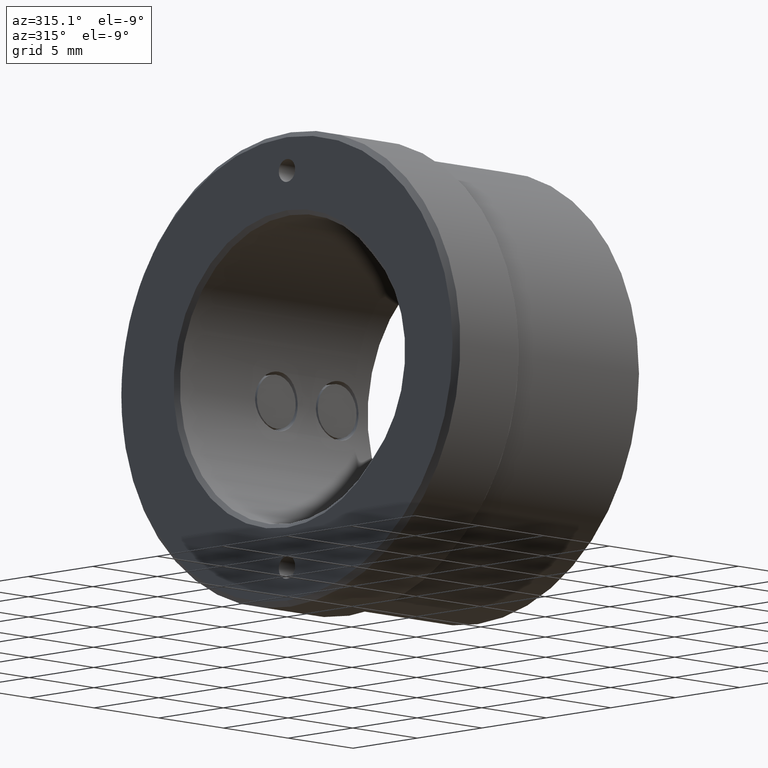
[diagram: clean part render]
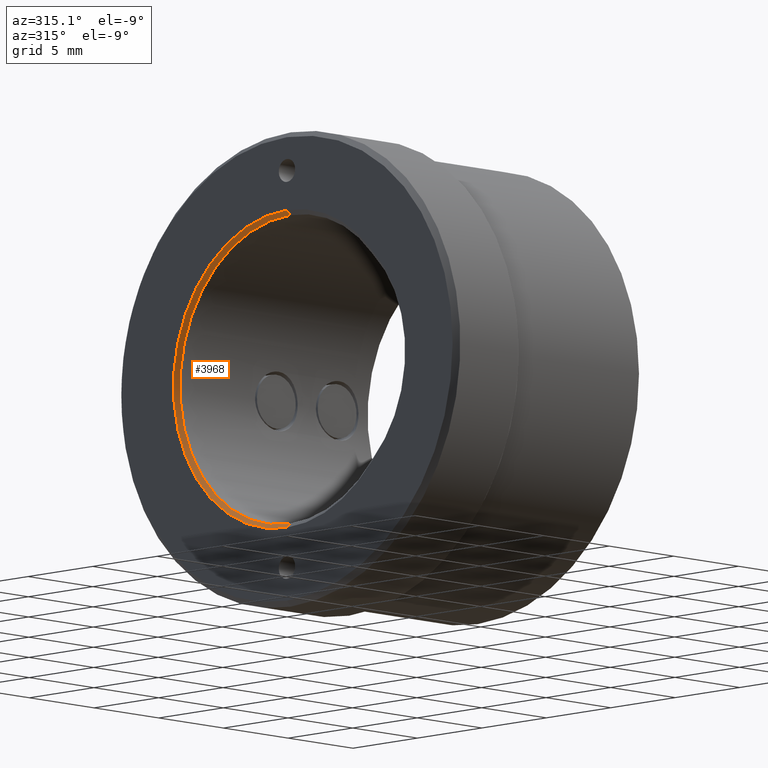
[diagram: same view with one face highlighted and labeled with its STEP entity id]
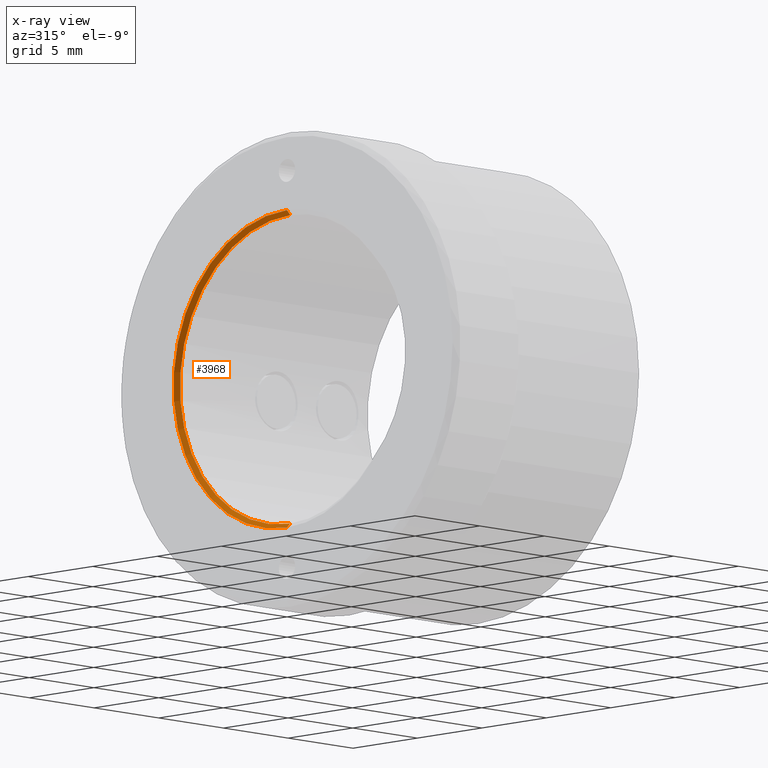
[diagram: x-ray of the same camera — body ghosted, the highlighted face saturated]
A machine part, auxiliary view. The second image highlights one B-rep face of the part: STEP entity #3968.
The next image is the same camera in x-ray: the body ghosted, the highlighted face saturated — about 0% of this face is hidden behind the body in this view.
In plain terms, the highlighted conical surface has half-angle 45 deg.
Its self-contained STEP definition (entity closure, byte-faithful):
#148 = DIRECTION ( 'NONE',  ( 0.000000000000000000, 0.000000000000000000, -1.000000000000000000 ) ) ;
#155 = VECTOR ( 'NONE', #4040, 1000.000000000000114 ) ;
#311 = CARTESIAN_POINT ( 'NONE',  ( 0.2500000000000036637, 0.000000000000000000, 0.000000000000000000 ) ) ;
#395 = CARTESIAN_POINT ( 'NONE',  ( 0.2500000000000036637, 1.047073013270987016E-15, -8.550000000000000711 ) ) ;
#638 = CIRCLE ( 'NONE', #2491, 8.799999999999998934 ) ;
#818 = ORIENTED_EDGE ( 'NONE', *, *, #3352, .F. ) ;
#837 = VERTEX_POINT ( 'NONE', #395 ) ;
#1131 = CARTESIAN_POINT ( 'NONE',  ( 0.2500000000000036637, 0.000000000000000000, 8.550000000000000711 ) ) ;
#1283 = EDGE_CURVE ( 'NONE', #4343, #837, #3628, .T. ) ;
#1364 = EDGE_CURVE ( 'NONE', #4343, #2785, #1565, .T. ) ;
#1565 = LINE ( 'NONE', #2633, #155 ) ;
#1599 = ORIENTED_EDGE ( 'NONE', *, *, #2813, .F. ) ;
#1717 = CARTESIAN_POINT ( 'NONE',  ( 0.000000000000000000, 0.000000000000000000, 0.000000000000000000 ) ) ;
#1892 = LINE ( 'NONE', #3230, #2873 ) ;
#2067 = CARTESIAN_POINT ( 'NONE',  ( 0.000000000000000000, 1.077689183249670605E-15, -8.799999999999998934 ) ) ;
#2087 = FACE_OUTER_BOUND ( 'NONE', #2151, .T. ) ;
#2151 = EDGE_LOOP ( 'NONE', ( #818, #4005, #2279, #1599 ) ) ;
#2279 = ORIENTED_EDGE ( 'NONE', *, *, #1364, .T. ) ;
#2408 = DIRECTION ( 'NONE',  ( 1.000000000000000000, 0.000000000000000000, 0.000000000000000000 ) ) ;
#2462 = DIRECTION ( 'NONE',  ( -1.000000000000000000, 0.000000000000000000, 0.000000000000000000 ) ) ;
#2491 = AXIS2_PLACEMENT_3D ( 'NONE', #1717, #2408, #3152 ) ;
#2504 = AXIS2_PLACEMENT_3D ( 'NONE', #311, #2462, #3873 ) ;
#2537 = DIRECTION ( 'NONE',  ( -0.7071067811865549002, 8.659560562354844111E-17, -0.7071067811865402453 ) ) ;
#2633 = CARTESIAN_POINT ( 'NONE',  ( 0.2500000000000036637, 0.000000000000000000, 8.550000000000000711 ) ) ;
#2785 = VERTEX_POINT ( 'NONE', #3561 ) ;
#2813 = EDGE_CURVE ( 'NONE', #3918, #2785, #638, .T. ) ;
#2873 = VECTOR ( 'NONE', #2537, 1000.000000000000114 ) ;
#3124 = AXIS2_PLACEMENT_3D ( 'NONE', #3322, #4472, #148 ) ;
#3152 = DIRECTION ( 'NONE',  ( 0.000000000000000000, 0.000000000000000000, -1.000000000000000000 ) ) ;
#3230 = CARTESIAN_POINT ( 'NONE',  ( 0.2500000000000036637, 1.047073013270987016E-15, -8.550000000000000711 ) ) ;
#3322 = CARTESIAN_POINT ( 'NONE',  ( 0.2500000000000036637, 0.000000000000000000, 0.000000000000000000 ) ) ;
#3352 = EDGE_CURVE ( 'NONE', #837, #3918, #1892, .T. ) ;
#3561 = CARTESIAN_POINT ( 'NONE',  ( 0.000000000000000000, 0.000000000000000000, 8.799999999999998934 ) ) ;
#3628 = CIRCLE ( 'NONE', #3124, 8.550000000000000711 ) ;
#3873 = DIRECTION ( 'NONE',  ( 0.000000000000000000, 0.000000000000000000, 1.000000000000000000 ) ) ;
#3918 = VERTEX_POINT ( 'NONE', #2067 ) ;
#3968 = ADVANCED_FACE ( 'NONE', ( #2087 ), #4504, .F. ) ;
#4005 = ORIENTED_EDGE ( 'NONE', *, *, #1283, .F. ) ;
#4040 = DIRECTION ( 'NONE',  ( -0.7071067811865549002, 0.000000000000000000, 0.7071067811865402453 ) ) ;
#4343 = VERTEX_POINT ( 'NONE', #1131 ) ;
#4472 = DIRECTION ( 'NONE',  ( -1.000000000000000000, 0.000000000000000000, 0.000000000000000000 ) ) ;
#4504 = CONICAL_SURFACE ( 'NONE', #2504, 8.550000000000000711, 0.7853981633974380649 ) ;